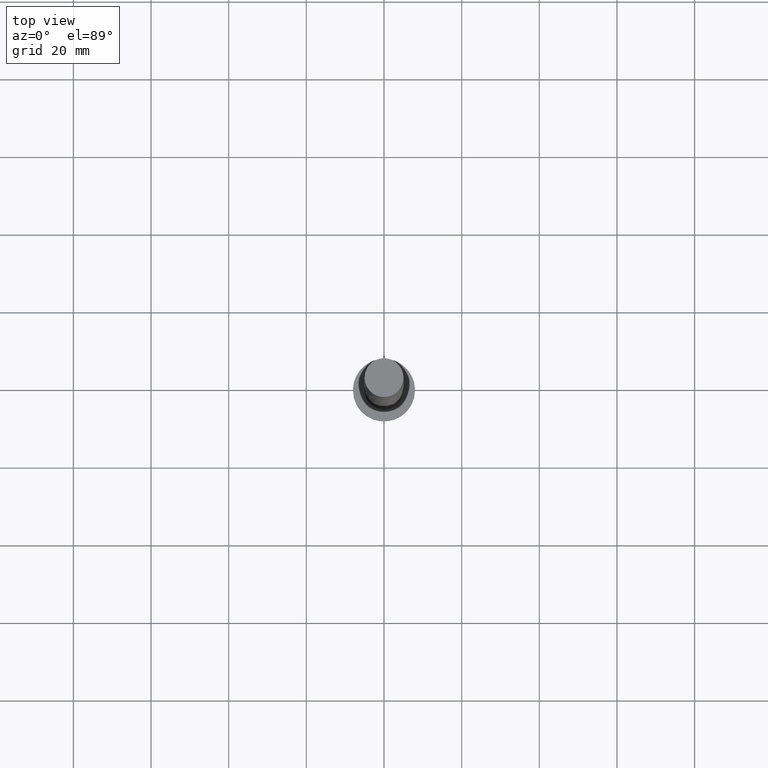
[diagram: clean part render]
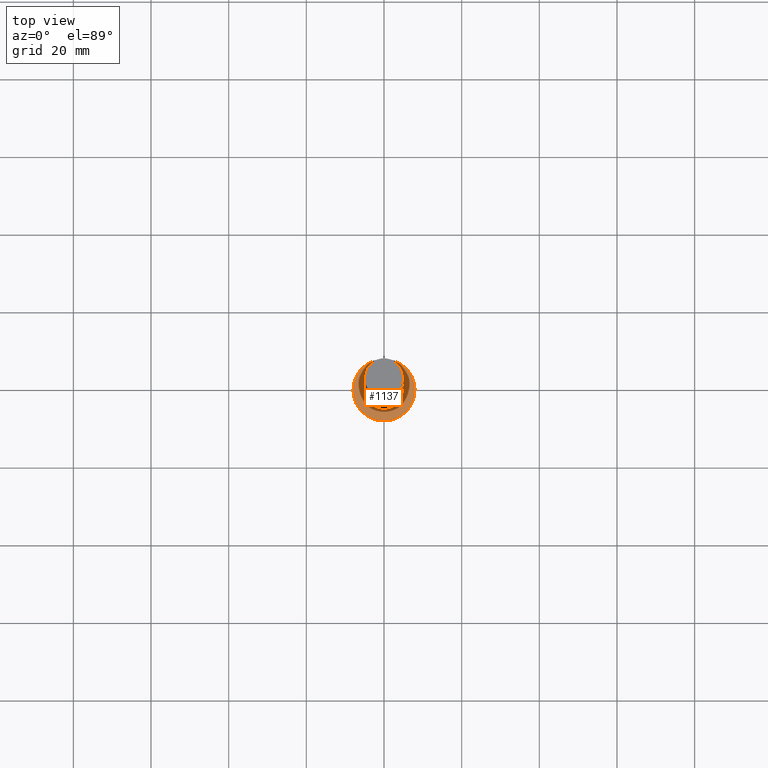
[diagram: same view with one face highlighted and labeled with its STEP entity id]
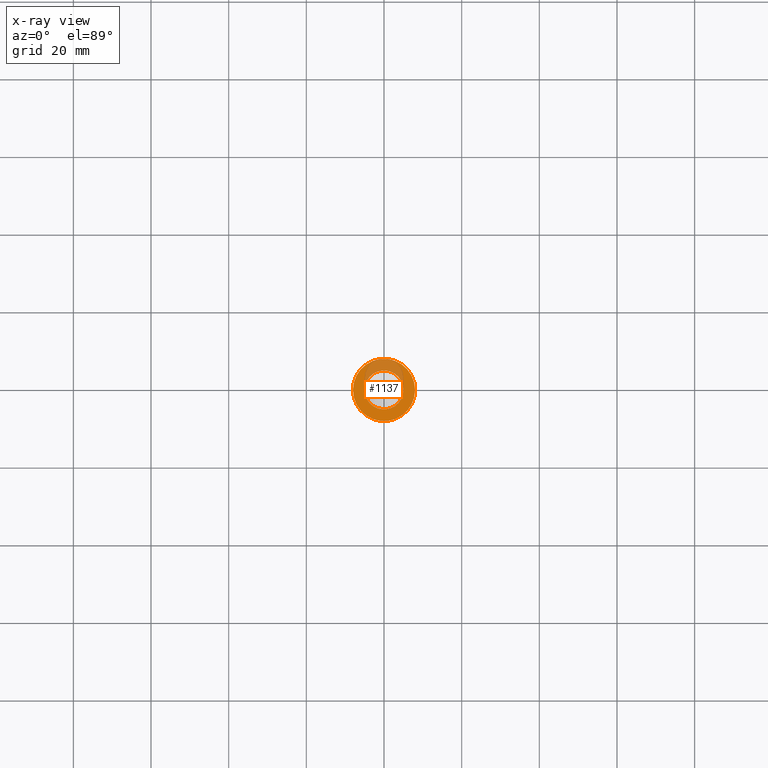
[diagram: x-ray of the same camera — body ghosted, the highlighted face saturated]
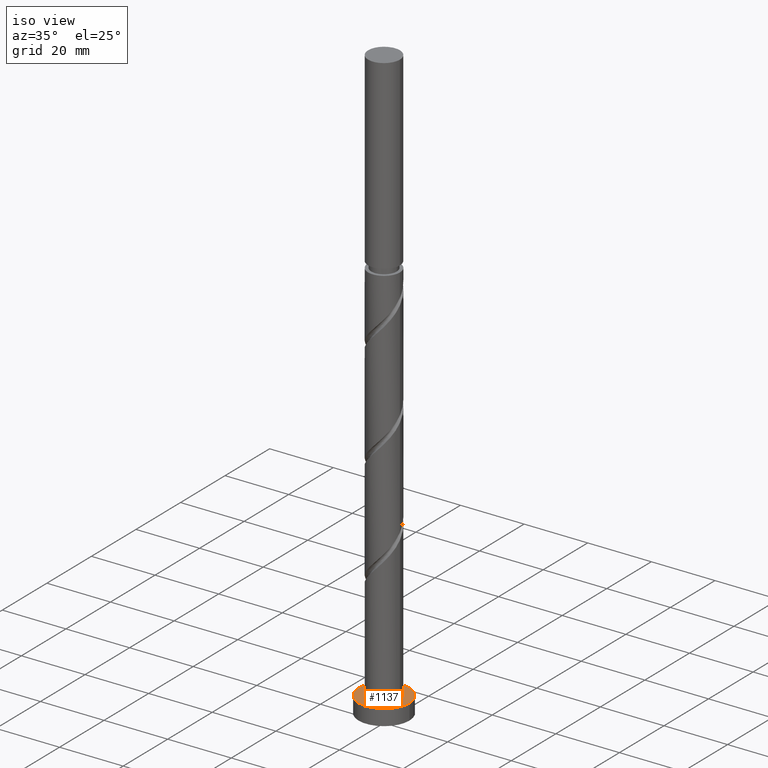
[diagram: same view with one face highlighted and labeled with its STEP entity id]
A machine part, top view. The second image highlights one B-rep face of the part: STEP entity #1137.
The next image is the same camera in x-ray: the body ghosted, the highlighted face saturated — about 26% of this face is hidden behind the body in this view.
A second angle (iso view) of the same face is appended — the face is thin or edge-on in the first view.
In plain terms, the highlighted planar face has unit normal (0, 0, 1).
Its self-contained STEP definition (entity closure, byte-faithful):
#83 = PLANE ( 'NONE',  #108 ) ;
#88 = EDGE_CURVE ( 'NONE', #865, #857, #1471, .T. ) ;
#97 = EDGE_CURVE ( 'NONE', #1232, #1601, #822, .T. ) ;
#108 = AXIS2_PLACEMENT_3D ( 'NONE', #927, #1582, #1546 ) ;
#139 = AXIS2_PLACEMENT_3D ( 'NONE', #814, #940, #1084 ) ;
#198 = ORIENTED_EDGE ( 'NONE', *, *, #413, .T. ) ;
#219 = CIRCLE ( 'NONE', #1513, 8.000000000000000000 ) ;
#246 = FACE_BOUND ( 'NONE', #1168, .T. ) ;
#294 = DIRECTION ( 'NONE',  ( 0.000000000000000000, 0.000000000000000000, 1.000000000000000000 ) ) ;
#330 = EDGE_CURVE ( 'NONE', #857, #865, #530, .T. ) ;
#413 = EDGE_CURVE ( 'NONE', #1601, #1232, #219, .T. ) ;
#416 = DIRECTION ( 'NONE',  ( 1.000000000000000000, 0.000000000000000000, 0.000000000000000000 ) ) ;
#525 = DIRECTION ( 'NONE',  ( 0.000000000000000000, 0.000000000000000000, 1.000000000000000000 ) ) ;
#530 = CIRCLE ( 'NONE', #1507, 5.000000000000000000 ) ;
#745 = DIRECTION ( 'NONE',  ( 1.000000000000000000, 0.000000000000000000, 0.000000000000000000 ) ) ;
#782 = CARTESIAN_POINT ( 'NONE',  ( 0.000000000000000000, 0.000000000000000000, 5.000000000000000000 ) ) ;
#814 = CARTESIAN_POINT ( 'NONE',  ( 0.000000000000000000, 0.000000000000000000, 5.000000000000000000 ) ) ;
#822 = CIRCLE ( 'NONE', #977, 8.000000000000000000 ) ;
#857 = VERTEX_POINT ( 'NONE', #1120 ) ;
#865 = VERTEX_POINT ( 'NONE', #1637 ) ;
#927 = CARTESIAN_POINT ( 'NONE',  ( 0.000000000000000000, 0.000000000000000000, 5.000000000000000000 ) ) ;
#940 = DIRECTION ( 'NONE',  ( 0.000000000000000000, 0.000000000000000000, 1.000000000000000000 ) ) ;
#960 = CARTESIAN_POINT ( 'NONE',  ( 8.000000000000000000, 9.797174393178825657E-16, 5.000000000000000000 ) ) ;
#967 = EDGE_LOOP ( 'NONE', ( #198, #1050 ) ) ;
#977 = AXIS2_PLACEMENT_3D ( 'NONE', #1608, #525, #416 ) ;
#1024 = CARTESIAN_POINT ( 'NONE',  ( -8.000000000000000000, 0.000000000000000000, 5.000000000000000000 ) ) ;
#1050 = ORIENTED_EDGE ( 'NONE', *, *, #97, .T. ) ;
#1067 = FACE_OUTER_BOUND ( 'NONE', #967, .T. ) ;
#1084 = DIRECTION ( 'NONE',  ( 1.000000000000000000, 0.000000000000000000, 0.000000000000000000 ) ) ;
#1105 = CARTESIAN_POINT ( 'NONE',  ( 0.000000000000000000, 0.000000000000000000, 5.000000000000000000 ) ) ;
#1120 = CARTESIAN_POINT ( 'NONE',  ( 5.000000000000000000, 6.123233995736766282E-16, 5.000000000000000000 ) ) ;
#1137 = ADVANCED_FACE ( 'NONE', ( #246, #1067 ), #83, .T. ) ;
#1168 = EDGE_LOOP ( 'NONE', ( #1688, #1202 ) ) ;
#1202 = ORIENTED_EDGE ( 'NONE', *, *, #330, .F. ) ;
#1232 = VERTEX_POINT ( 'NONE', #960 ) ;
#1244 = DIRECTION ( 'NONE',  ( 1.000000000000000000, 0.000000000000000000, 0.000000000000000000 ) ) ;
#1414 = DIRECTION ( 'NONE',  ( 0.000000000000000000, 0.000000000000000000, 1.000000000000000000 ) ) ;
#1471 = CIRCLE ( 'NONE', #139, 5.000000000000000000 ) ;
#1507 = AXIS2_PLACEMENT_3D ( 'NONE', #1105, #294, #1244 ) ;
#1513 = AXIS2_PLACEMENT_3D ( 'NONE', #782, #1414, #745 ) ;
#1546 = DIRECTION ( 'NONE',  ( 1.000000000000000000, 0.000000000000000000, -0.000000000000000000 ) ) ;
#1582 = DIRECTION ( 'NONE',  ( 0.000000000000000000, 0.000000000000000000, 1.000000000000000000 ) ) ;
#1601 = VERTEX_POINT ( 'NONE', #1024 ) ;
#1608 = CARTESIAN_POINT ( 'NONE',  ( 0.000000000000000000, 0.000000000000000000, 5.000000000000000000 ) ) ;
#1637 = CARTESIAN_POINT ( 'NONE',  ( -5.000000000000000000, 0.000000000000000000, 5.000000000000000000 ) ) ;
#1688 = ORIENTED_EDGE ( 'NONE', *, *, #88, .F. ) ;